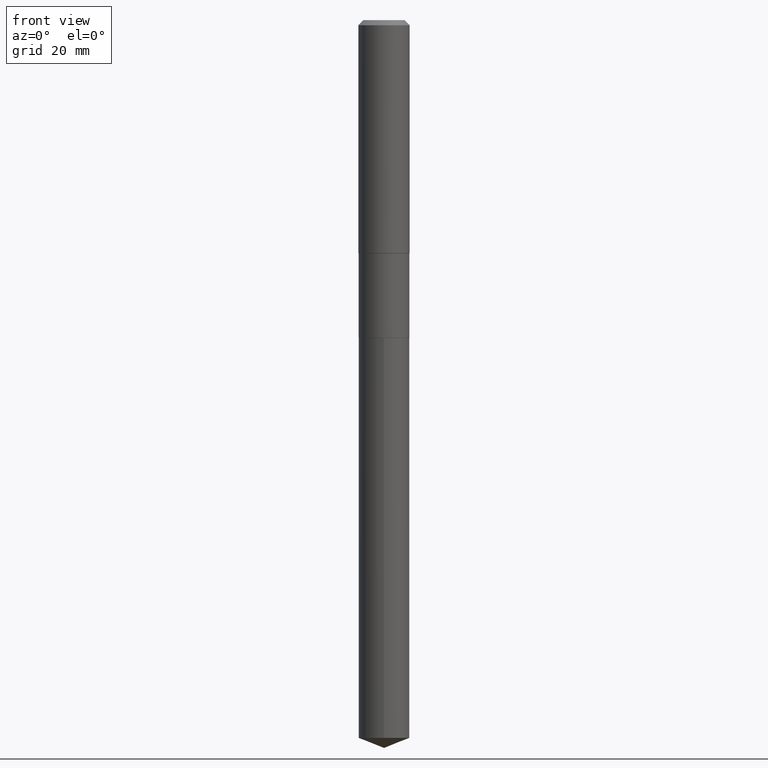
[diagram: clean part render]
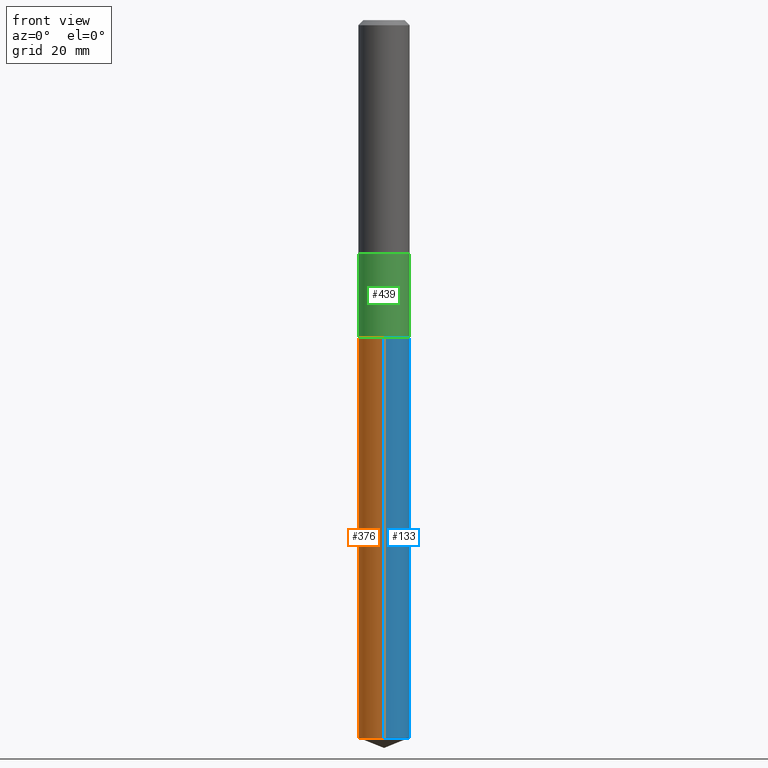
[diagram: same view with three faces highlighted in distinct colors, each labeled with its STEP entity id]
A machine part, front view with three faces highlighted in distinct colors.
Their STEP definitions:

[orange] entity #376 — the highlighted cylindrical surface (edge-blend (fillet) strip) has radius 4.9505 mm, axis along (-0, 0, 1).
#15 = ORIENTED_EDGE ( 'NONE', *, *, #109, .F. ) ;
#39 = DIRECTION ( 'NONE',  ( -2.445428369358333970E-29, 3.491539246680648506E-15, 1.000000000000000000 ) ) ;
#56 = CIRCLE ( 'NONE', #480, 0.1948999999999999899 ) ;
#66 = VECTOR ( 'NONE', #408, 39.37007874015748143 ) ;
#68 = CARTESIAN_POINT ( 'NONE',  ( 1.384847791996570086E-15, 0.1948999999999807553, -5.513726848302648698 ) ) ;
#79 = CARTESIAN_POINT ( 'NONE',  ( 5.969144809017297917E-29, -8.522356799982231388E-15, -2.440899999999999181 ) ) ;
#81 = VERTEX_POINT ( 'NONE', #68 ) ;
#97 = EDGE_LOOP ( 'NONE', ( #105, #120, #127, #15 ) ) ;
#98 = AXIS2_PLACEMENT_3D ( 'NONE', #433, #233, #387 ) ;
#105 = ORIENTED_EDGE ( 'NONE', *, *, #317, .F. ) ;
#109 = EDGE_CURVE ( 'NONE', #319, #208, #56, .T. ) ;
#110 = LINE ( 'NONE', #485, #66 ) ;
#120 = ORIENTED_EDGE ( 'NONE', *, *, #300, .T. ) ;
#127 = ORIENTED_EDGE ( 'NONE', *, *, #141, .T. ) ;
#141 = EDGE_CURVE ( 'NONE', #201, #208, #110, .T. ) ;
#181 = DIRECTION ( 'NONE',  ( -6.982962677686266711E-15, -1.000000000000000000, 2.803332984776052637E-15 ) ) ;
#201 = VERTEX_POINT ( 'NONE', #215 ) ;
#208 = VERTEX_POINT ( 'NONE', #340 ) ;
#215 = CARTESIAN_POINT ( 'NONE',  ( -1.360979425880918394E-15, -0.1949000000000192523, -5.513726848302646921 ) ) ;
#219 = CARTESIAN_POINT ( 'NONE',  ( 5.969144809017297917E-29, -8.522356799982231388E-15, -2.440899999999999181 ) ) ;
#233 = DIRECTION ( 'NONE',  ( -2.445428369358333970E-29, 3.491539246680648506E-15, 1.000000000000000000 ) ) ;
#292 = DIRECTION ( 'NONE',  ( -2.445428369358333970E-29, 3.491539246680648506E-15, 1.000000000000000000 ) ) ;
#300 = EDGE_CURVE ( 'NONE', #81, #201, #463, .T. ) ;
#301 = CYLINDRICAL_SURFACE ( 'NONE', #389, 0.1948999999999999899 ) ;
#317 = EDGE_CURVE ( 'NONE', #81, #319, #343, .T. ) ;
#319 = VERTEX_POINT ( 'NONE', #337 ) ;
#337 = CARTESIAN_POINT ( 'NONE',  ( 1.384847791996570283E-15, 0.1948999999999914412, -2.440899999999999626 ) ) ;
#340 = CARTESIAN_POINT ( 'NONE',  ( -1.360979425880993533E-15, -0.1949000000000085109, -2.440899999999998737 ) ) ;
#343 = LINE ( 'NONE', #382, #406 ) ;
#374 = DIRECTION ( 'NONE',  ( -6.982962677686266711E-15, -1.000000000000000000, 2.803332984776052637E-15 ) ) ;
#375 = FACE_OUTER_BOUND ( 'NONE', #97, .T. ) ;
#376 = ADVANCED_FACE ( 'NONE', ( #375 ), #301, .T. ) ;
#382 = CARTESIAN_POINT ( 'NONE',  ( 1.384847791996494552E-15, 0.1948999999999914412, -2.440899999999999626 ) ) ;
#387 = DIRECTION ( 'NONE',  ( -6.982962677686266711E-15, -1.000000000000000000, 5.606665969552105274E-15 ) ) ;
#389 = AXIS2_PLACEMENT_3D ( 'NONE', #79, #39, #181 ) ;
#406 = VECTOR ( 'NONE', #456, 39.37007874015748143 ) ;
#408 = DIRECTION ( 'NONE',  ( -2.445428369358333970E-29, 3.491539246680648506E-15, 1.000000000000000000 ) ) ;
#433 = CARTESIAN_POINT ( 'NONE',  ( 1.348352275798255505E-28, -1.925125233908493571E-14, -5.513726848302647809 ) ) ;
#456 = DIRECTION ( 'NONE',  ( -2.445428369358333970E-29, 3.491539246680648506E-15, 1.000000000000000000 ) ) ;
#463 = CIRCLE ( 'NONE', #98, 0.1948999999999999899 ) ;
#480 = AXIS2_PLACEMENT_3D ( 'NONE', #219, #292, #374 ) ;
#485 = CARTESIAN_POINT ( 'NONE',  ( -1.360979425880993533E-15, -0.1949000000000085109, -2.440899999999998737 ) ) ;

[blue] entity #133 — the highlighted cylindrical surface (edge-blend (fillet) strip) has radius 4.9505 mm, axis along (-0, 0, 1).
#1 = CARTESIAN_POINT ( 'NONE',  ( 5.969144809017297917E-29, -8.522356799982231388E-15, -2.440899999999999181 ) ) ;
#17 = AXIS2_PLACEMENT_3D ( 'NONE', #1, #152, #259 ) ;
#18 = CIRCLE ( 'NONE', #189, 0.1948999999999999899 ) ;
#66 = VECTOR ( 'NONE', #408, 39.37007874015748143 ) ;
#68 = CARTESIAN_POINT ( 'NONE',  ( 1.384847791996570086E-15, 0.1948999999999807553, -5.513726848302648698 ) ) ;
#71 = FACE_OUTER_BOUND ( 'NONE', #196, .T. ) ;
#75 = DIRECTION ( 'NONE',  ( -6.982962677686266711E-15, -1.000000000000000000, 2.803332984776052637E-15 ) ) ;
#81 = VERTEX_POINT ( 'NONE', #68 ) ;
#89 = ORIENTED_EDGE ( 'NONE', *, *, #138, .F. ) ;
#110 = LINE ( 'NONE', #485, #66 ) ;
#116 = DIRECTION ( 'NONE',  ( -2.445428369358333970E-29, 3.491539246680648506E-15, 1.000000000000000000 ) ) ;
#133 = ADVANCED_FACE ( 'NONE', ( #71 ), #252, .T. ) ;
#138 = EDGE_CURVE ( 'NONE', #208, #319, #429, .T. ) ;
#141 = EDGE_CURVE ( 'NONE', #201, #208, #110, .T. ) ;
#152 = DIRECTION ( 'NONE',  ( -2.445428369358333970E-29, 3.491539246680648506E-15, 1.000000000000000000 ) ) ;
#162 = ORIENTED_EDGE ( 'NONE', *, *, #445, .T. ) ;
#185 = CARTESIAN_POINT ( 'NONE',  ( 1.348352275798255505E-28, -1.925125233908493571E-14, -5.513726848302647809 ) ) ;
#189 = AXIS2_PLACEMENT_3D ( 'NONE', #185, #256, #413 ) ;
#196 = EDGE_LOOP ( 'NONE', ( #162, #232, #89, #320 ) ) ;
#201 = VERTEX_POINT ( 'NONE', #215 ) ;
#208 = VERTEX_POINT ( 'NONE', #340 ) ;
#215 = CARTESIAN_POINT ( 'NONE',  ( -1.360979425880918394E-15, -0.1949000000000192523, -5.513726848302646921 ) ) ;
#232 = ORIENTED_EDGE ( 'NONE', *, *, #317, .T. ) ;
#252 = CYLINDRICAL_SURFACE ( 'NONE', #363, 0.1948999999999999899 ) ;
#256 = DIRECTION ( 'NONE',  ( -2.445428369358333970E-29, 3.491539246680648506E-15, 1.000000000000000000 ) ) ;
#259 = DIRECTION ( 'NONE',  ( -6.982962677686266711E-15, -1.000000000000000000, 2.803332984776052637E-15 ) ) ;
#317 = EDGE_CURVE ( 'NONE', #81, #319, #343, .T. ) ;
#319 = VERTEX_POINT ( 'NONE', #337 ) ;
#320 = ORIENTED_EDGE ( 'NONE', *, *, #141, .F. ) ;
#337 = CARTESIAN_POINT ( 'NONE',  ( 1.384847791996570283E-15, 0.1948999999999914412, -2.440899999999999626 ) ) ;
#340 = CARTESIAN_POINT ( 'NONE',  ( -1.360979425880993533E-15, -0.1949000000000085109, -2.440899999999998737 ) ) ;
#343 = LINE ( 'NONE', #382, #406 ) ;
#363 = AXIS2_PLACEMENT_3D ( 'NONE', #366, #116, #75 ) ;
#366 = CARTESIAN_POINT ( 'NONE',  ( 5.969144809017297917E-29, -8.522356799982231388E-15, -2.440899999999999181 ) ) ;
#382 = CARTESIAN_POINT ( 'NONE',  ( 1.384847791996494552E-15, 0.1948999999999914412, -2.440899999999999626 ) ) ;
#406 = VECTOR ( 'NONE', #456, 39.37007874015748143 ) ;
#408 = DIRECTION ( 'NONE',  ( -2.445428369358333970E-29, 3.491539246680648506E-15, 1.000000000000000000 ) ) ;
#413 = DIRECTION ( 'NONE',  ( -6.982962677686266711E-15, -1.000000000000000000, 5.606665969552105274E-15 ) ) ;
#429 = CIRCLE ( 'NONE', #17, 0.1948999999999999899 ) ;
#445 = EDGE_CURVE ( 'NONE', #201, #81, #18, .T. ) ;
#456 = DIRECTION ( 'NONE',  ( -2.445428369358333970E-29, 3.491539246680648506E-15, 1.000000000000000000 ) ) ;
#485 = CARTESIAN_POINT ( 'NONE',  ( -1.360979425880993533E-15, -0.1949000000000085109, -2.440899999999998737 ) ) ;

[green] entity #439 — the highlighted cylindrical surface (edge-blend (fillet) strip) has radius 4.9505 mm, axis along (-0, 0, 1).
#9 = CIRCLE ( 'NONE', #447, 0.1948999999999999899 ) ;
#13 = EDGE_CURVE ( 'NONE', #390, #365, #26, .T. ) ;
#20 = EDGE_CURVE ( 'NONE', #269, #271, #9, .T. ) ;
#26 = CIRCLE ( 'NONE', #226, 0.1948999999999999067 ) ;
#27 = CARTESIAN_POINT ( 'NONE',  ( 5.967922074614205116E-29, -8.520611059312809095E-15, -2.440399999999999014 ) ) ;
#35 = CYLINDRICAL_SURFACE ( 'NONE', #379, 0.1948999999999999344 ) ;
#36 = LINE ( 'NONE', #46, #316 ) ;
#41 = VECTOR ( 'NONE', #454, 39.37007874015748143 ) ;
#46 = CARTESIAN_POINT ( 'NONE',  ( 0.1948999999999999344, -1.360979425881052894E-15, 9.503668536026277414E-30 ) ) ;
#64 = DIRECTION ( 'NONE',  ( 1.000000000000000000, -6.982962677686267499E-15, 0.000000000000000000 ) ) ;
#69 = CARTESIAN_POINT ( 'NONE',  ( -0.1948999999999999899, -6.003475869129541133E-15, -2.440399999999999014 ) ) ;
#73 = LINE ( 'NONE', #457, #41 ) ;
#82 = FACE_OUTER_BOUND ( 'NONE', #353, .T. ) ;
#130 = DIRECTION ( 'NONE',  ( -2.445468806185136597E-29, 3.491481338843145583E-15, 1.000000000000000000 ) ) ;
#145 = CARTESIAN_POINT ( 'NONE',  ( -0.1948999999999999067, -6.003475869129541922E-15, -1.791799999999999171 ) ) ;
#172 = DIRECTION ( 'NONE',  ( -2.445468806185136597E-29, 3.491481338843145583E-15, 1.000000000000000000 ) ) ;
#214 = DIRECTION ( 'NONE',  ( -2.445468806185136877E-29, 3.491481338843145188E-15, 1.000000000000000000 ) ) ;
#224 = CARTESIAN_POINT ( 'NONE',  ( 0.1948999999999999067, -7.617015688820197828E-15, -1.791799999999999171 ) ) ;
#226 = AXIS2_PLACEMENT_3D ( 'NONE', #473, #172, #64 ) ;
#230 = DIRECTION ( 'NONE',  ( 1.000000000000000000, -6.982962677686266711E-15, 4.876176775795936914E-29 ) ) ;
#251 = EDGE_CURVE ( 'NONE', #271, #365, #36, .T. ) ;
#265 = ORIENTED_EDGE ( 'NONE', *, *, #13, .F. ) ;
#269 = VERTEX_POINT ( 'NONE', #69 ) ;
#271 = VERTEX_POINT ( 'NONE', #359 ) ;
#293 = DIRECTION ( 'NONE',  ( -2.445468806185136597E-29, 3.491481338843145583E-15, 1.000000000000000000 ) ) ;
#312 = ORIENTED_EDGE ( 'NONE', *, *, #20, .T. ) ;
#316 = VECTOR ( 'NONE', #214, 39.37007874015748143 ) ;
#353 = EDGE_LOOP ( 'NONE', ( #384, #312, #437, #265 ) ) ;
#359 = CARTESIAN_POINT ( 'NONE',  ( 0.1948999999999999899, -9.881590485193863765E-15, -2.440399999999999014 ) ) ;
#365 = VERTEX_POINT ( 'NONE', #224 ) ;
#377 = CARTESIAN_POINT ( 'NONE',  ( 0.000000000000000000, 0.000000000000000000, 0.000000000000000000 ) ) ;
#379 = AXIS2_PLACEMENT_3D ( 'NONE', #377, #293, #230 ) ;
#384 = ORIENTED_EDGE ( 'NONE', *, *, #391, .F. ) ;
#390 = VERTEX_POINT ( 'NONE', #145 ) ;
#391 = EDGE_CURVE ( 'NONE', #269, #390, #73, .T. ) ;
#437 = ORIENTED_EDGE ( 'NONE', *, *, #251, .T. ) ;
#439 = ADVANCED_FACE ( 'NONE', ( #82 ), #35, .T. ) ;
#447 = AXIS2_PLACEMENT_3D ( 'NONE', #27, #130, #478 ) ;
#454 = DIRECTION ( 'NONE',  ( -2.445468806185136877E-29, 3.491481338843145188E-15, 1.000000000000000000 ) ) ;
#457 = CARTESIAN_POINT ( 'NONE',  ( -0.1948999999999999344, 1.384847791996434796E-15, -9.587004490906808522E-30 ) ) ;
#473 = CARTESIAN_POINT ( 'NONE',  ( 4.381791006922526060E-29, -6.256036262939144736E-15, -1.791799999999999171 ) ) ;
#478 = DIRECTION ( 'NONE',  ( 1.000000000000000000, -6.982962677686269866E-15, 0.000000000000000000 ) ) ;